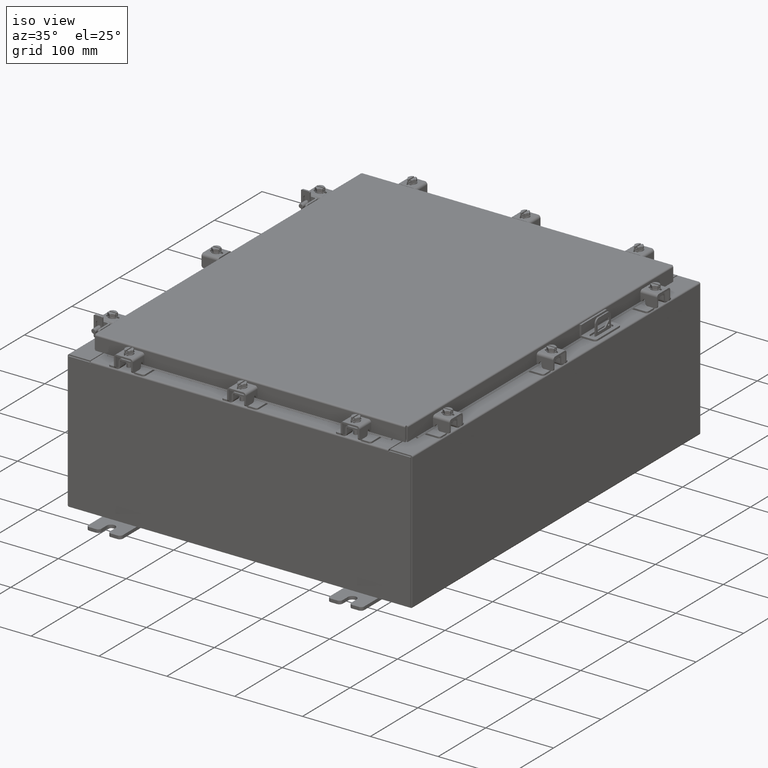
[diagram: clean part render]
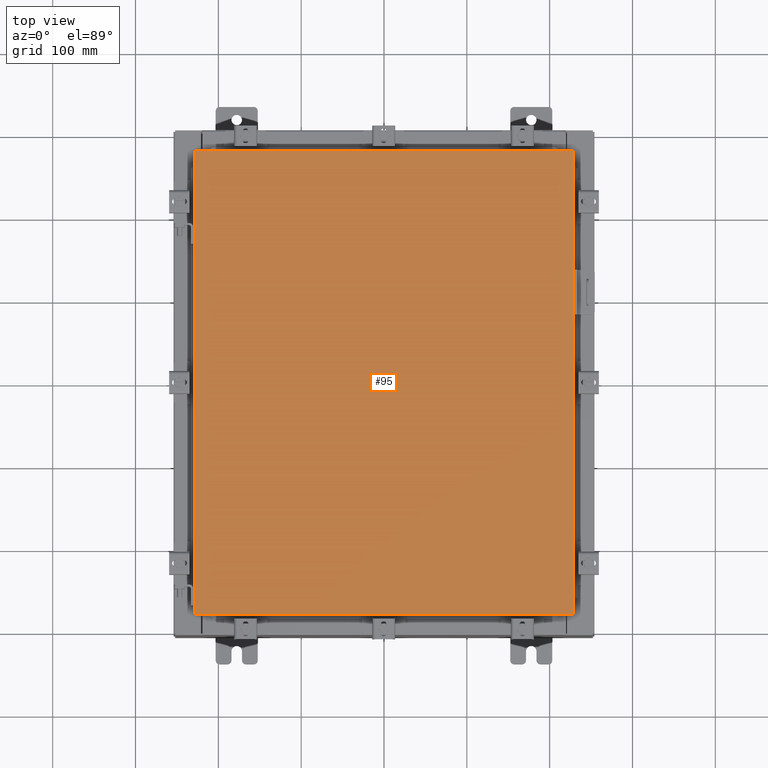
[diagram: tour spotlight — one face highlighted and labeled with its STEP entity id]
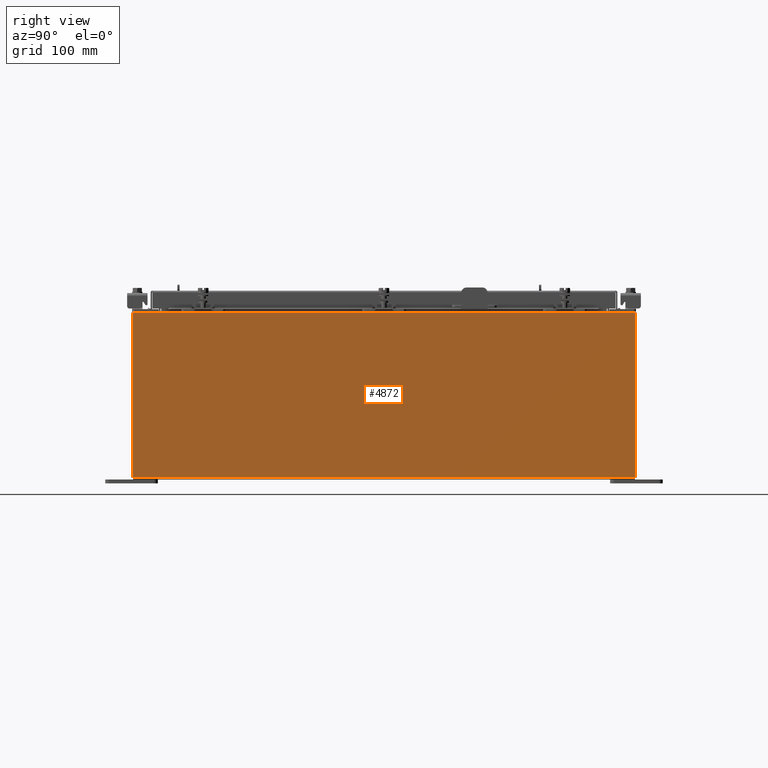
[diagram: tour spotlight — one face highlighted and labeled with its STEP entity id]
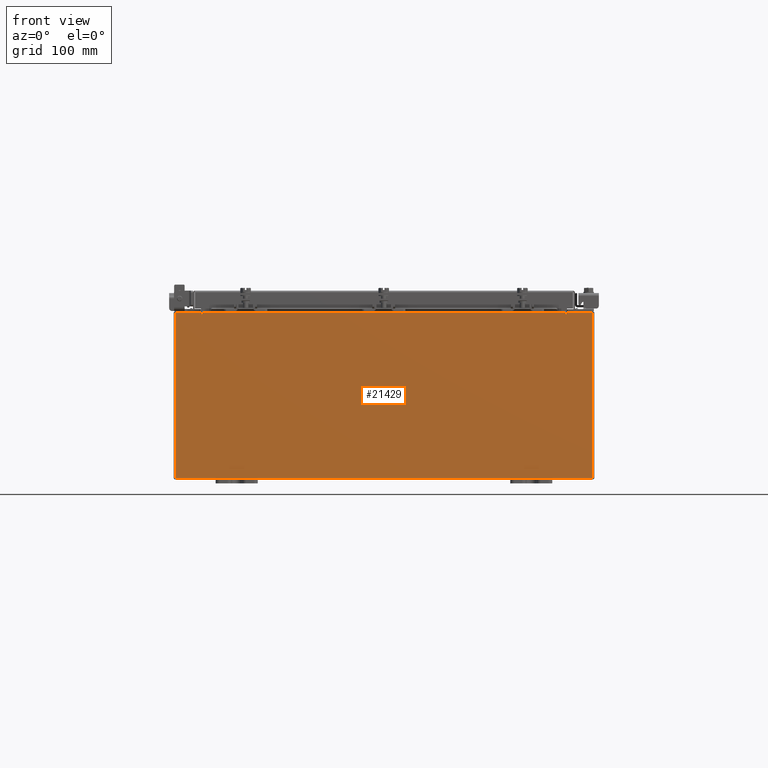
[diagram: tour spotlight — one face highlighted and labeled with its STEP entity id]
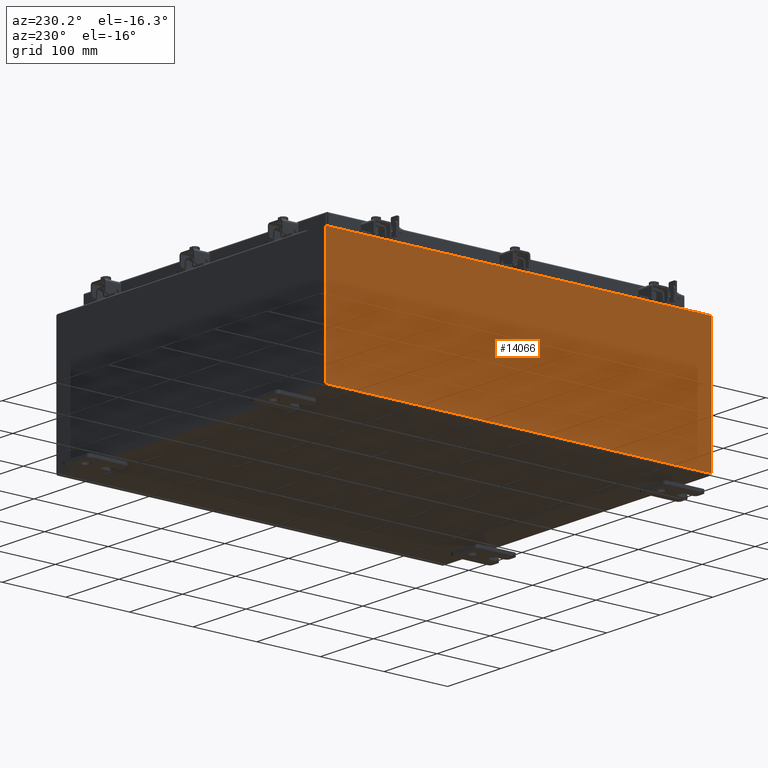
[diagram: tour spotlight — one face highlighted and labeled with its STEP entity id]
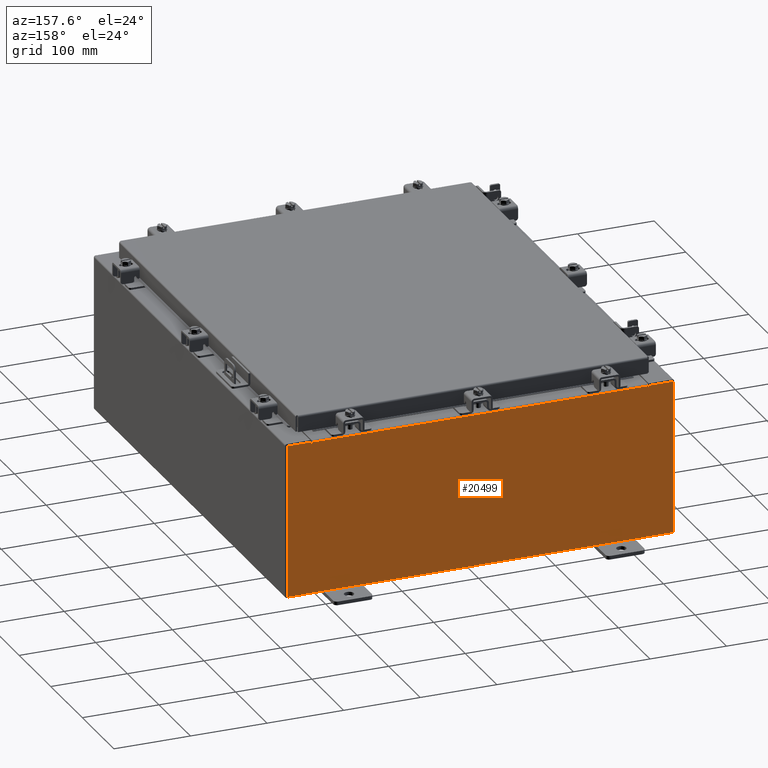
[diagram: tour spotlight — one face highlighted and labeled with its STEP entity id]
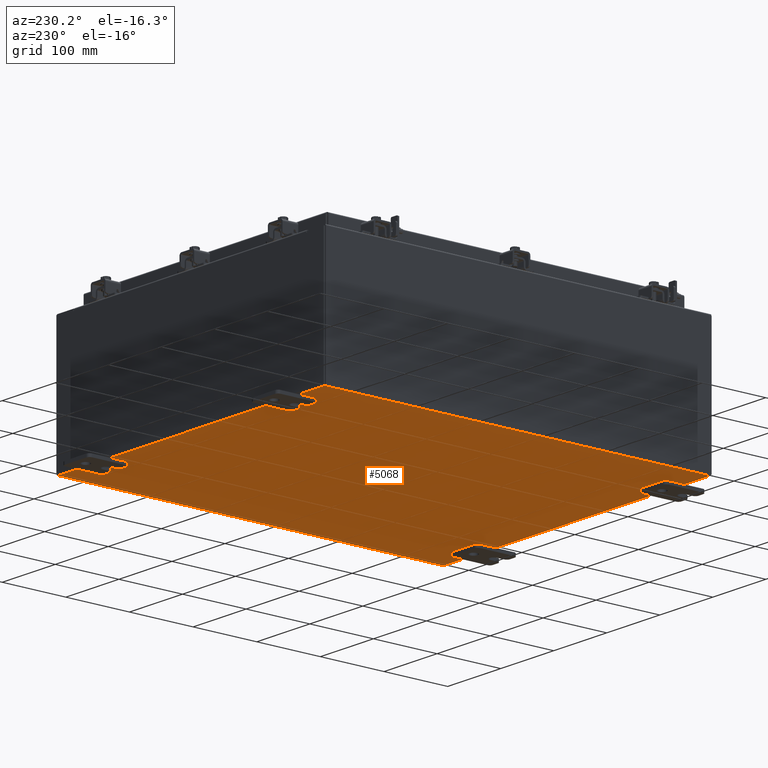
[diagram: tour spotlight — one face highlighted and labeled with its STEP entity id]
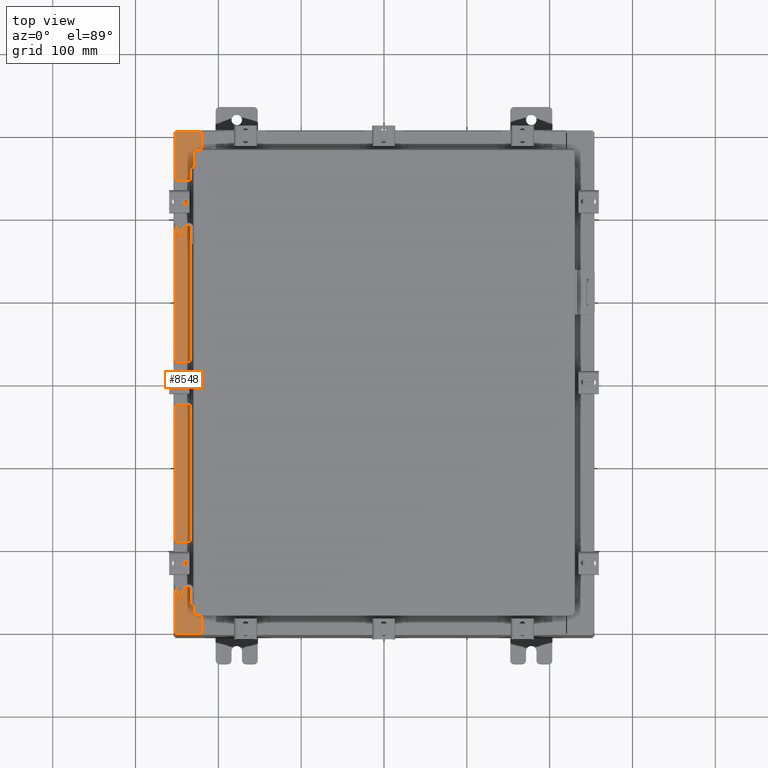
[diagram: tour spotlight — one face highlighted and labeled with its STEP entity id]
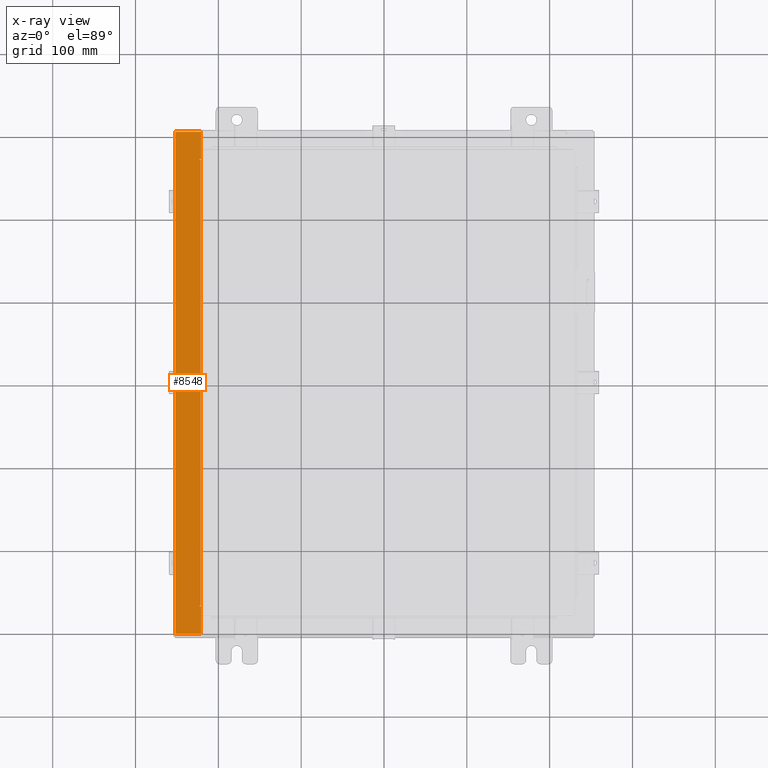
[diagram: x-ray of the same camera — body ghosted, this tour face saturated]
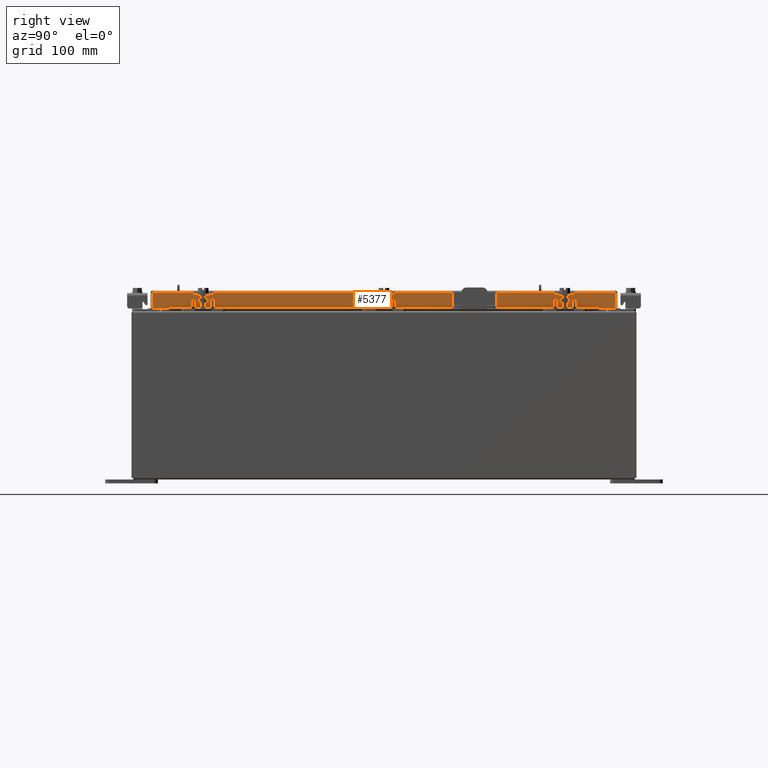
[diagram: tour spotlight — one face highlighted and labeled with its STEP entity id]
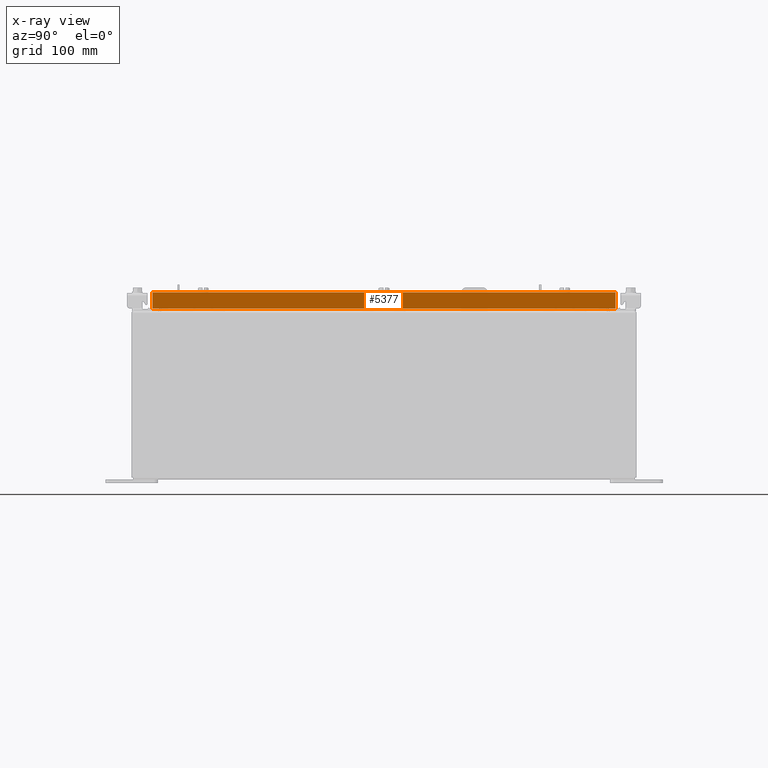
[diagram: x-ray of the same camera — body ghosted, this tour face saturated]
A machine part: a face-by-face anatomy tour. The part has 2018 B-rep faces; the first image is the clean iso view, then the 8 largest visible faces are spotlighted one at a time (largest first), each with its STEP entity span.

Face 1 — top view, entity #95. In plain terms, the highlighted planar face has unit normal (0, 0, -1).
Definition (entity closure, byte-faithful):
#95 = ADVANCED_FACE ( 'NONE', ( #15818 ), #2689, .F. ) ;
#224 = LINE ( 'NONE', #7612, #9480 ) ;
#2431 = CARTESIAN_POINT ( 'NONE',  ( 8.990299999999999500, -11.00630000000000000, -7.512581982576723400E-016 ) ) ;
#2525 = VERTEX_POINT ( 'NONE', #20377 ) ;
#2689 = PLANE ( 'NONE',  #7051 ) ;
#2711 = ORIENTED_EDGE ( 'NONE', *, *, #21019, .T. ) ;
#2712 = CARTESIAN_POINT ( 'NONE',  ( 0.0000000000000000000, 0.0000000000000000000, 0.0000000000000000000 ) ) ;
#5622 = LINE ( 'NONE', #7962, #14387 ) ;
#6442 = DIRECTION ( 'NONE',  ( 0.0000000000000000000, 0.0000000000000000000, -1.000000000000000000 ) ) ;
#6555 = DIRECTION ( 'NONE',  ( -1.000000000000000000, 0.0000000000000000000, -0.0000000000000000000 ) ) ;
#7051 = AXIS2_PLACEMENT_3D ( 'NONE', #2712, #6442, #6555 ) ;
#7612 = CARTESIAN_POINT ( 'NONE',  ( -8.990299999999999500, -11.00630000000000100, -2.048885995248197400E-016 ) ) ;
#7962 = CARTESIAN_POINT ( 'NONE',  ( -8.990299999999999500, 11.00630000000000100, -2.048885995248197400E-016 ) ) ;
#9480 = VECTOR ( 'NONE', #18090, 39.37007874015748100 ) ;
#9732 = DIRECTION ( 'NONE',  ( 0.0000000000000000000, -1.000000000000000000, 0.0000000000000000000 ) ) ;
#10247 = ORIENTED_EDGE ( 'NONE', *, *, #10421, .T. ) ;
#10421 = EDGE_CURVE ( 'NONE', #17636, #2525, #224, .T. ) ;
#10465 = EDGE_CURVE ( 'NONE', #2525, #12976, #22305, .T. ) ;
#12627 = VECTOR ( 'NONE', #19180, 39.37007874015748100 ) ;
#12976 = VERTEX_POINT ( 'NONE', #21591 ) ;
#13050 = VECTOR ( 'NONE', #19877, 39.37007874015748100 ) ;
#14387 = VECTOR ( 'NONE', #9732, 39.37007874015748100 ) ;
#15818 = FACE_OUTER_BOUND ( 'NONE', #16778, .T. ) ;
#16030 = ORIENTED_EDGE ( 'NONE', *, *, #18102, .T. ) ;
#16778 = EDGE_LOOP ( 'NONE', ( #10247, #19525, #2711, #16030 ) ) ;
#17636 = VERTEX_POINT ( 'NONE', #21308 ) ;
#17831 = LINE ( 'NONE', #19262, #12627 ) ;
#18090 = DIRECTION ( 'NONE',  ( 1.000000000000000000, -0.0000000000000000000, -0.0000000000000000000 ) ) ;
#18102 = EDGE_CURVE ( 'NONE', #20822, #17636, #5622, .T. ) ;
#19180 = DIRECTION ( 'NONE',  ( -1.000000000000000000, -0.0000000000000000000, -0.0000000000000000000 ) ) ;
#19262 = CARTESIAN_POINT ( 'NONE',  ( 8.990299999999999500, 11.00630000000000000, -2.048885995248197400E-016 ) ) ;
#19525 = ORIENTED_EDGE ( 'NONE', *, *, #10465, .T. ) ;
#19877 = DIRECTION ( 'NONE',  ( 0.0000000000000000000, 1.000000000000000000, 0.0000000000000000000 ) ) ;
#20377 = CARTESIAN_POINT ( 'NONE',  ( 8.990299999999999500, -11.00630000000000000, -7.512581982576723400E-016 ) ) ;
#20822 = VERTEX_POINT ( 'NONE', #22215 ) ;
#21019 = EDGE_CURVE ( 'NONE', #12976, #20822, #17831, .T. ) ;
#21308 = CARTESIAN_POINT ( 'NONE',  ( -8.990299999999999500, -11.00630000000000100, -2.048885995248197400E-016 ) ) ;
#21591 = CARTESIAN_POINT ( 'NONE',  ( 8.990299999999999500, 11.00630000000000000, -2.048885995248197400E-016 ) ) ;
#22215 = CARTESIAN_POINT ( 'NONE',  ( -8.990299999999999500, 11.00630000000000100, -2.048885995248197400E-016 ) ) ;
#22305 = LINE ( 'NONE', #2431, #13050 ) ;

Face 2 — right view, entity #4872. In plain terms, the highlighted planar face has unit normal (-1, 0, 0).
Definition (entity closure, byte-faithful):
#602 = CARTESIAN_POINT ( 'NONE',  ( 10.00000000000000000, -11.92530000000000000, 0.01299999999999983600 ) ) ;
#802 = VECTOR ( 'NONE', #7851, 39.37007874015748100 ) ;
#809 = FACE_OUTER_BOUND ( 'NONE', #2577, .T. ) ;
#1068 = VECTOR ( 'NONE', #13588, 39.37007874015748100 ) ;
#1079 = DIRECTION ( 'NONE',  ( -1.000000000000000000, 0.0000000000000000000, 3.584876173029202900E-015 ) ) ;
#1603 = AXIS2_PLACEMENT_3D ( 'NONE', #21986, #1079, #13315 ) ;
#2357 = CARTESIAN_POINT ( 'NONE',  ( 10.00000000000000000, 11.92529999999999800, 0.01299999999999984700 ) ) ;
#2577 = EDGE_LOOP ( 'NONE', ( #18405, #6065, #21929, #13222 ) ) ;
#3114 = CARTESIAN_POINT ( 'NONE',  ( 10.00000000000000000, -11.92530000000000000, 0.01299999999999984700 ) ) ;
#4872 = ADVANCED_FACE ( 'NONE', ( #809 ), #9765, .F. ) ;
#5696 = CARTESIAN_POINT ( 'NONE',  ( 10.00000000000000000, 11.92530000000000000, -3.610957538630361200E-014 ) ) ;
#5776 = DIRECTION ( 'NONE',  ( 3.584876173029202900E-015, 0.0000000000000000000, 1.000000000000000000 ) ) ;
#6065 = ORIENTED_EDGE ( 'NONE', *, *, #6845, .T. ) ;
#6845 = EDGE_CURVE ( 'NONE', #19668, #14554, #10545, .T. ) ;
#7285 = CARTESIAN_POINT ( 'NONE',  ( 10.00000000000002800, 11.92529999999999800, 7.837599999999992100 ) ) ;
#7851 = DIRECTION ( 'NONE',  ( -0.0000000000000000000, -1.000000000000000000, -0.0000000000000000000 ) ) ;
#8023 = EDGE_CURVE ( 'NONE', #20419, #19668, #14715, .T. ) ;
#8184 = EDGE_CURVE ( 'NONE', #22493, #14554, #14984, .T. ) ;
#9045 = CARTESIAN_POINT ( 'NONE',  ( 10.00000000000002800, -11.92530000000000000, 7.837599999999998300 ) ) ;
#9765 = PLANE ( 'NONE',  #1603 ) ;
#10402 = EDGE_CURVE ( 'NONE', #22493, #20419, #14139, .T. ) ;
#10545 = LINE ( 'NONE', #13203, #19315 ) ;
#13203 = CARTESIAN_POINT ( 'NONE',  ( 10.00000000000000000, -11.92530000000000000, -3.610957538630361200E-014 ) ) ;
#13222 = ORIENTED_EDGE ( 'NONE', *, *, #10402, .T. ) ;
#13315 = DIRECTION ( 'NONE',  ( 3.584876173029202900E-015, 0.0000000000000000000, 1.000000000000000000 ) ) ;
#13588 = DIRECTION ( 'NONE',  ( -0.0000000000000000000, -1.000000000000000000, -0.0000000000000000000 ) ) ;
#14139 = LINE ( 'NONE', #5696, #18797 ) ;
#14554 = VERTEX_POINT ( 'NONE', #602 ) ;
#14715 = LINE ( 'NONE', #16561, #802 ) ;
#14984 = LINE ( 'NONE', #3114, #1068 ) ;
#16561 = CARTESIAN_POINT ( 'NONE',  ( 10.00000000000002800, 11.92530000000000000, 7.837599999999992100 ) ) ;
#18405 = ORIENTED_EDGE ( 'NONE', *, *, #8023, .T. ) ;
#18797 = VECTOR ( 'NONE', #5776, 39.37007874015748100 ) ;
#19315 = VECTOR ( 'NONE', #21871, 39.37007874015748100 ) ;
#19668 = VERTEX_POINT ( 'NONE', #9045 ) ;
#20419 = VERTEX_POINT ( 'NONE', #7285 ) ;
#21871 = DIRECTION ( 'NONE',  ( -3.584876173029202900E-015, 0.0000000000000000000, -1.000000000000000000 ) ) ;
#21929 = ORIENTED_EDGE ( 'NONE', *, *, #8184, .F. ) ;
#21986 = CARTESIAN_POINT ( 'NONE',  ( 10.00000000000000000, 0.0000000000000000000, -3.610957538630361200E-014 ) ) ;
#22493 = VERTEX_POINT ( 'NONE', #2357 ) ;

Face 3 — front view, entity #21429. In plain terms, the highlighted planar face has unit normal (-0, 1, -0).
Definition (entity closure, byte-faithful):
#443 = VERTEX_POINT ( 'NONE', #11909 ) ;
#489 = LINE ( 'NONE', #2023, #13333 ) ;
#605 = VERTEX_POINT ( 'NONE', #5186 ) ;
#798 = CARTESIAN_POINT ( 'NONE',  ( 8.674550000000001800, 0.0000000000000000000, 3.925299999999999600 ) ) ;
#905 = DIRECTION ( 'NONE',  ( -0.0000000000000000000, 1.000000000000000000, -0.0000000000000000000 ) ) ;
#1187 = ORIENTED_EDGE ( 'NONE', *, *, #6278, .T. ) ;
#1497 = CARTESIAN_POINT ( 'NONE',  ( -8.637199999999996400, 1.024442997624098700E-016, 3.912299999999999700 ) ) ;
#1880 = LINE ( 'NONE', #12726, #10572 ) ;
#1961 = VERTEX_POINT ( 'NONE', #18223 ) ;
#2023 = CARTESIAN_POINT ( 'NONE',  ( 8.674549999999747700, -0.0000000000000000000, -5.647877341832665300E-013 ) ) ;
#2321 = DIRECTION ( 'NONE',  ( 0.0000000000000000000, 0.0000000000000000000, -1.000000000000000000 ) ) ;
#2619 = VECTOR ( 'NONE', #13609, 39.37007874015748100 ) ;
#2926 = CARTESIAN_POINT ( 'NONE',  ( 0.0000000000000000000, 0.0000000000000000000, 0.0000000000000000000 ) ) ;
#2987 = DIRECTION ( 'NONE',  ( 0.0000000000000000000, -0.0000000000000000000, -1.000000000000000000 ) ) ;
#3116 = ORIENTED_EDGE ( 'NONE', *, *, #8336, .T. ) ;
#3235 = LINE ( 'NONE', #7823, #13080 ) ;
#3802 = EDGE_CURVE ( 'NONE', #15924, #8218, #19385, .T. ) ;
#3890 = VERTEX_POINT ( 'NONE', #14805 ) ;
#3902 = FACE_OUTER_BOUND ( 'NONE', #16133, .T. ) ;
#4673 = VECTOR ( 'NONE', #20541, 39.37007874015748100 ) ;
#4737 = ORIENTED_EDGE ( 'NONE', *, *, #14155, .T. ) ;
#5186 = CARTESIAN_POINT ( 'NONE',  ( -8.674549999999996400, 0.0000000000000000000, 3.874949999999999700 ) ) ;
#5386 = LINE ( 'NONE', #11322, #13618 ) ;
#5640 = AXIS2_PLACEMENT_3D ( 'NONE', #18746, #18568, #18433 ) ;
#5867 = EDGE_CURVE ( 'NONE', #15908, #13246, #1880, .T. ) ;
#5978 = EDGE_CURVE ( 'NONE', #8218, #18068, #5386, .T. ) ;
#6001 = ORIENTED_EDGE ( 'NONE', *, *, #17542, .F. ) ;
#6007 = ORIENTED_EDGE ( 'NONE', *, *, #17732, .T. ) ;
#6014 = CARTESIAN_POINT ( 'NONE',  ( 9.925300000000000000, 0.0000000000000000000, -3.925299999999999600 ) ) ;
#6278 = EDGE_CURVE ( 'NONE', #1961, #443, #8675, .T. ) ;
#6734 = CARTESIAN_POINT ( 'NONE',  ( 8.674550000000000000, 0.0000000000000000000, 3.874949999999999700 ) ) ;
#7056 = CARTESIAN_POINT ( 'NONE',  ( -9.925300000000000000, 0.0000000000000000000, 3.925299999999999600 ) ) ;
#7208 = ORIENTED_EDGE ( 'NONE', *, *, #8642, .T. ) ;
#7369 = CIRCLE ( 'NONE', #14781, 0.01867500000000003900 ) ;
#7404 = VERTEX_POINT ( 'NONE', #12788 ) ;
#7502 = ORIENTED_EDGE ( 'NONE', *, *, #21084, .T. ) ;
#7575 = CARTESIAN_POINT ( 'NONE',  ( 9.925300000000000000, 0.0000000000000000000, 3.925299999999999600 ) ) ;
#7587 = EDGE_CURVE ( 'NONE', #605, #7404, #17106, .T. ) ;
#7599 = VECTOR ( 'NONE', #19297, 39.37007874015748100 ) ;
#7823 = CARTESIAN_POINT ( 'NONE',  ( -8.637200000000000000, 1.024442997624098700E-016, 3.912299999999999700 ) ) ;
#7918 = ORIENTED_EDGE ( 'NONE', *, *, #3802, .F. ) ;
#7969 = LINE ( 'NONE', #17656, #16733 ) ;
#8218 = VERTEX_POINT ( 'NONE', #15485 ) ;
#8333 = CARTESIAN_POINT ( 'NONE',  ( -9.925300000000000000, 0.0000000000000000000, -3.925299999999999600 ) ) ;
#8336 = EDGE_CURVE ( 'NONE', #443, #7404, #12251, .T. ) ;
#8544 = CARTESIAN_POINT ( 'NONE',  ( -8.637199999999996400, -0.0000000000000000000, 3.874949999999999700 ) ) ;
#8642 = EDGE_CURVE ( 'NONE', #15908, #18068, #3235, .T. ) ;
#8675 = LINE ( 'NONE', #13244, #22042 ) ;
#10512 = VERTEX_POINT ( 'NONE', #6014 ) ;
#10572 = VECTOR ( 'NONE', #14550, 39.37007874015748100 ) ;
#11322 = CARTESIAN_POINT ( 'NONE',  ( 8.637200000000000000, 0.0000000000000000000, 0.0000000000000000000 ) ) ;
#11336 = CARTESIAN_POINT ( 'NONE',  ( -8.655874999999996400, 0.0000000000000000000, 3.874949999999999700 ) ) ;
#11538 = ORIENTED_EDGE ( 'NONE', *, *, #15119, .F. ) ;
#11909 = CARTESIAN_POINT ( 'NONE',  ( -9.925300000000000000, 0.0000000000000000000, 3.925299999999999600 ) ) ;
#12251 = LINE ( 'NONE', #7056, #7599 ) ;
#12283 = VERTEX_POINT ( 'NONE', #798 ) ;
#12726 = CARTESIAN_POINT ( 'NONE',  ( -8.637199999999996400, -0.0000000000000000000, 0.0000000000000000000 ) ) ;
#12788 = CARTESIAN_POINT ( 'NONE',  ( -8.674549999999996400, 0.0000000000000000000, 3.925299999999999600 ) ) ;
#13080 = VECTOR ( 'NONE', #18288, 39.37007874015748100 ) ;
#13108 = DIRECTION ( 'NONE',  ( 0.0000000000000000000, 0.0000000000000000000, -1.000000000000000000 ) ) ;
#13244 = CARTESIAN_POINT ( 'NONE',  ( -9.925300000000000000, 0.0000000000000000000, 3.925299999999999600 ) ) ;
#13246 = VERTEX_POINT ( 'NONE', #8544 ) ;
#13333 = VECTOR ( 'NONE', #14222, 39.37007874015748100 ) ;
#13470 = DIRECTION ( 'NONE',  ( 0.0000000000000000000, -1.000000000000000000, 0.0000000000000000000 ) ) ;
#13552 = ORIENTED_EDGE ( 'NONE', *, *, #5978, .F. ) ;
#13609 = DIRECTION ( 'NONE',  ( 0.0000000000000000000, 0.0000000000000000000, 1.000000000000000000 ) ) ;
#13618 = VECTOR ( 'NONE', #20063, 39.37007874015748100 ) ;
#13855 = ORIENTED_EDGE ( 'NONE', *, *, #7587, .F. ) ;
#14155 = EDGE_CURVE ( 'NONE', #10512, #1961, #18631, .T. ) ;
#14222 = DIRECTION ( 'NONE',  ( -6.510859170600007400E-014, 0.0000000000000000000, -1.000000000000000000 ) ) ;
#14550 = DIRECTION ( 'NONE',  ( 0.0000000000000000000, 0.0000000000000000000, -1.000000000000000000 ) ) ;
#14669 = VECTOR ( 'NONE', #2321, 39.37007874015748100 ) ;
#14781 = AXIS2_PLACEMENT_3D ( 'NONE', #11336, #905, #13108 ) ;
#14805 = CARTESIAN_POINT ( 'NONE',  ( 9.925300000000000000, 0.0000000000000000000, 3.925299999999999600 ) ) ;
#15119 = EDGE_CURVE ( 'NONE', #13246, #605, #7369, .T. ) ;
#15485 = CARTESIAN_POINT ( 'NONE',  ( 8.637200000000000000, 0.0000000000000000000, 3.874949999999999700 ) ) ;
#15908 = VERTEX_POINT ( 'NONE', #1497 ) ;
#15924 = VERTEX_POINT ( 'NONE', #6734 ) ;
#16133 = EDGE_LOOP ( 'NONE', ( #13855, #11538, #18557, #7208, #13552, #7918, #6001, #7502, #6007, #4737, #1187, #3116 ) ) ;
#16212 = AXIS2_PLACEMENT_3D ( 'NONE', #2926, #13470, #2987 ) ;
#16733 = VECTOR ( 'NONE', #21144, 39.37007874015748100 ) ;
#16908 = PLANE ( 'NONE',  #16212 ) ;
#17106 = LINE ( 'NONE', #18807, #2619 ) ;
#17444 = CARTESIAN_POINT ( 'NONE',  ( 8.637200000000000000, 0.0000000000000000000, 3.912299999999999700 ) ) ;
#17542 = EDGE_CURVE ( 'NONE', #12283, #15924, #489, .T. ) ;
#17656 = CARTESIAN_POINT ( 'NONE',  ( -9.925300000000000000, 0.0000000000000000000, 3.925299999999999600 ) ) ;
#17732 = EDGE_CURVE ( 'NONE', #3890, #10512, #19890, .T. ) ;
#18068 = VERTEX_POINT ( 'NONE', #17444 ) ;
#18223 = CARTESIAN_POINT ( 'NONE',  ( -9.925300000000000000, 0.0000000000000000000, -3.925299999999999600 ) ) ;
#18288 = DIRECTION ( 'NONE',  ( 1.000000000000000000, 0.0000000000000000000, 0.0000000000000000000 ) ) ;
#18433 = DIRECTION ( 'NONE',  ( 0.0000000000000000000, 0.0000000000000000000, -1.000000000000000000 ) ) ;
#18557 = ORIENTED_EDGE ( 'NONE', *, *, #5867, .F. ) ;
#18568 = DIRECTION ( 'NONE',  ( -0.0000000000000000000, 1.000000000000000000, -0.0000000000000000000 ) ) ;
#18631 = LINE ( 'NONE', #8333, #4673 ) ;
#18746 = CARTESIAN_POINT ( 'NONE',  ( 8.655875000000000000, 0.0000000000000000000, 3.874949999999999700 ) ) ;
#18807 = CARTESIAN_POINT ( 'NONE',  ( -8.674549999999996400, -0.0000000000000000000, 0.0000000000000000000 ) ) ;
#19297 = DIRECTION ( 'NONE',  ( 1.000000000000000000, 0.0000000000000000000, 0.0000000000000000000 ) ) ;
#19385 = CIRCLE ( 'NONE', #5640, 0.01867500000000003900 ) ;
#19890 = LINE ( 'NONE', #7575, #14669 ) ;
#20063 = DIRECTION ( 'NONE',  ( 0.0000000000000000000, 0.0000000000000000000, 1.000000000000000000 ) ) ;
#20541 = DIRECTION ( 'NONE',  ( -1.000000000000000000, -0.0000000000000000000, -0.0000000000000000000 ) ) ;
#21084 = EDGE_CURVE ( 'NONE', #12283, #3890, #7969, .T. ) ;
#21144 = DIRECTION ( 'NONE',  ( 1.000000000000000000, 0.0000000000000000000, 0.0000000000000000000 ) ) ;
#21429 = ADVANCED_FACE ( 'NONE', ( #3902 ), #16908, .F. ) ;
#21901 = DIRECTION ( 'NONE',  ( -0.0000000000000000000, -0.0000000000000000000, 1.000000000000000000 ) ) ;
#22042 = VECTOR ( 'NONE', #21901, 39.37007874015748100 ) ;

Face 4 — auxiliary view, entity #14066. In plain terms, the highlighted planar face has unit normal (1, 0, 0).
Definition (entity closure, byte-faithful):
#40 = EDGE_LOOP ( 'NONE', ( #13194, #21162, #21869, #21205 ) ) ;
#134 = LINE ( 'NONE', #4894, #8846 ) ;
#2421 = DIRECTION ( 'NONE',  ( -3.584876173029202900E-015, 0.0000000000000000000, 1.000000000000000000 ) ) ;
#2706 = CARTESIAN_POINT ( 'NONE',  ( -10.00000000000000000, -11.92529999999999800, 0.01299999999999984700 ) ) ;
#3783 = DIRECTION ( 'NONE',  ( 3.584876173029202900E-015, 0.0000000000000000000, -1.000000000000000000 ) ) ;
#4654 = DIRECTION ( 'NONE',  ( 1.000000000000000000, 0.0000000000000000000, 3.584876173029202900E-015 ) ) ;
#4894 = CARTESIAN_POINT ( 'NONE',  ( -10.00000000000000000, 11.92530000000000000, 0.01299999999999984700 ) ) ;
#5261 = VERTEX_POINT ( 'NONE', #14189 ) ;
#5695 = AXIS2_PLACEMENT_3D ( 'NONE', #15127, #4654, #16898 ) ;
#5846 = CARTESIAN_POINT ( 'NONE',  ( -10.00000000000002800, -11.92529999999999500, 7.837599999999999200 ) ) ;
#6128 = LINE ( 'NONE', #12859, #9677 ) ;
#6665 = DIRECTION ( 'NONE',  ( -0.0000000000000000000, 1.000000000000000000, -0.0000000000000000000 ) ) ;
#8094 = PLANE ( 'NONE',  #5695 ) ;
#8470 = LINE ( 'NONE', #19921, #17225 ) ;
#8846 = VECTOR ( 'NONE', #6665, 39.37007874015748100 ) ;
#9677 = VECTOR ( 'NONE', #16311, 39.37007874015748100 ) ;
#9950 = LINE ( 'NONE', #12495, #11024 ) ;
#10916 = FACE_OUTER_BOUND ( 'NONE', #40, .T. ) ;
#11024 = VECTOR ( 'NONE', #3783, 39.37007874015748100 ) ;
#11960 = EDGE_CURVE ( 'NONE', #21857, #5261, #9950, .T. ) ;
#12234 = EDGE_CURVE ( 'NONE', #17000, #21857, #6128, .T. ) ;
#12309 = VERTEX_POINT ( 'NONE', #2706 ) ;
#12495 = CARTESIAN_POINT ( 'NONE',  ( -10.00000000000000000, 11.92530000000000000, -3.610957538630361200E-014 ) ) ;
#12532 = EDGE_CURVE ( 'NONE', #12309, #5261, #134, .T. ) ;
#12859 = CARTESIAN_POINT ( 'NONE',  ( -10.00000000000002800, -11.92530000000000000, 7.837599999999999200 ) ) ;
#13194 = ORIENTED_EDGE ( 'NONE', *, *, #12234, .T. ) ;
#14066 = ADVANCED_FACE ( 'NONE', ( #10916 ), #8094, .F. ) ;
#14189 = CARTESIAN_POINT ( 'NONE',  ( -10.00000000000000000, 11.92530000000000000, 0.01299999999999983600 ) ) ;
#15072 = EDGE_CURVE ( 'NONE', #12309, #17000, #8470, .T. ) ;
#15127 = CARTESIAN_POINT ( 'NONE',  ( -10.00000000000000000, 0.0000000000000000000, -3.610957538630361200E-014 ) ) ;
#16311 = DIRECTION ( 'NONE',  ( 0.0000000000000000000, 1.000000000000000000, 0.0000000000000000000 ) ) ;
#16898 = DIRECTION ( 'NONE',  ( 3.584876173029202900E-015, 0.0000000000000000000, -1.000000000000000000 ) ) ;
#17000 = VERTEX_POINT ( 'NONE', #5846 ) ;
#17225 = VECTOR ( 'NONE', #2421, 39.37007874015748100 ) ;
#17727 = CARTESIAN_POINT ( 'NONE',  ( -10.00000000000002800, 11.92530000000000000, 7.837599999999999200 ) ) ;
#19921 = CARTESIAN_POINT ( 'NONE',  ( -10.00000000000000000, -11.92530000000000000, -3.610957538630361200E-014 ) ) ;
#21162 = ORIENTED_EDGE ( 'NONE', *, *, #11960, .T. ) ;
#21205 = ORIENTED_EDGE ( 'NONE', *, *, #15072, .T. ) ;
#21857 = VERTEX_POINT ( 'NONE', #17727 ) ;
#21869 = ORIENTED_EDGE ( 'NONE', *, *, #12532, .F. ) ;

Face 5 — auxiliary view, entity #20499. In plain terms, the highlighted planar face has unit normal (0, -1, 0).
Definition (entity closure, byte-faithful):
#110 = ORIENTED_EDGE ( 'NONE', *, *, #891, .F. ) ;
#233 = LINE ( 'NONE', #18695, #18253 ) ;
#709 = CARTESIAN_POINT ( 'NONE',  ( 8.637200000000000000, 0.0000000000000000000, 3.874949999999999700 ) ) ;
#891 = EDGE_CURVE ( 'NONE', #22154, #3374, #18143, .T. ) ;
#1049 = VERTEX_POINT ( 'NONE', #22059 ) ;
#1154 = AXIS2_PLACEMENT_3D ( 'NONE', #7022, #19255, #8759 ) ;
#1184 = CARTESIAN_POINT ( 'NONE',  ( -9.925300000000000000, 0.0000000000000000000, 3.925299999999999600 ) ) ;
#1477 = CARTESIAN_POINT ( 'NONE',  ( 8.674550000000000000, 0.0000000000000000000, 3.874949999999999700 ) ) ;
#1853 = VERTEX_POINT ( 'NONE', #17987 ) ;
#2078 = LINE ( 'NONE', #1184, #2632 ) ;
#2410 = CARTESIAN_POINT ( 'NONE',  ( -9.925300000000000000, 0.0000000000000000000, 3.925299999999999600 ) ) ;
#2632 = VECTOR ( 'NONE', #8176, 39.37007874015748100 ) ;
#3013 = EDGE_CURVE ( 'NONE', #7446, #1853, #4646, .T. ) ;
#3108 = ORIENTED_EDGE ( 'NONE', *, *, #4316, .F. ) ;
#3295 = CARTESIAN_POINT ( 'NONE',  ( -9.925300000000000000, 0.0000000000000000000, -3.925299999999999600 ) ) ;
#3374 = VERTEX_POINT ( 'NONE', #709 ) ;
#3512 = LINE ( 'NONE', #4471, #17742 ) ;
#4000 = VECTOR ( 'NONE', #21480, 39.37007874015748100 ) ;
#4088 = ORIENTED_EDGE ( 'NONE', *, *, #17231, .T. ) ;
#4316 = EDGE_CURVE ( 'NONE', #19514, #22154, #3512, .T. ) ;
#4331 = EDGE_CURVE ( 'NONE', #3374, #20489, #22353, .T. ) ;
#4471 = CARTESIAN_POINT ( 'NONE',  ( 8.674549999999747700, -0.0000000000000000000, -5.647877341832665300E-013 ) ) ;
#4646 = LINE ( 'NONE', #18947, #8739 ) ;
#5018 = AXIS2_PLACEMENT_3D ( 'NONE', #15361, #13101, #21559 ) ;
#5120 = EDGE_CURVE ( 'NONE', #1049, #7446, #18006, .T. ) ;
#5210 = CARTESIAN_POINT ( 'NONE',  ( 8.637200000000000000, 0.0000000000000000000, 0.0000000000000000000 ) ) ;
#5370 = LINE ( 'NONE', #10300, #9484 ) ;
#5618 = CARTESIAN_POINT ( 'NONE',  ( -8.637200000000000000, 1.024442997624098700E-016, 3.912299999999999700 ) ) ;
#5898 = VERTEX_POINT ( 'NONE', #2410 ) ;
#5900 = CARTESIAN_POINT ( 'NONE',  ( 0.0000000000000000000, 0.0000000000000000000, 0.0000000000000000000 ) ) ;
#6126 = ORIENTED_EDGE ( 'NONE', *, *, #3013, .F. ) ;
#6207 = DIRECTION ( 'NONE',  ( -6.510859170600007400E-014, 0.0000000000000000000, -1.000000000000000000 ) ) ;
#6359 = ORIENTED_EDGE ( 'NONE', *, *, #5120, .F. ) ;
#6425 = EDGE_CURVE ( 'NONE', #9094, #1049, #5370, .T. ) ;
#6660 = CARTESIAN_POINT ( 'NONE',  ( 9.925300000000000000, 0.0000000000000000000, 3.925299999999999600 ) ) ;
#6910 = FACE_OUTER_BOUND ( 'NONE', #10659, .T. ) ;
#7022 = CARTESIAN_POINT ( 'NONE',  ( -8.655874999999996400, 0.0000000000000000000, 3.874949999999999700 ) ) ;
#7446 = VERTEX_POINT ( 'NONE', #21628 ) ;
#7641 = DIRECTION ( 'NONE',  ( 0.0000000000000000000, -0.0000000000000000000, -1.000000000000000000 ) ) ;
#7887 = EDGE_CURVE ( 'NONE', #9094, #20489, #16580, .T. ) ;
#8176 = DIRECTION ( 'NONE',  ( 1.000000000000000000, 0.0000000000000000000, 0.0000000000000000000 ) ) ;
#8658 = LINE ( 'NONE', #10976, #4000 ) ;
#8739 = VECTOR ( 'NONE', #18982, 39.37007874015748100 ) ;
#8759 = DIRECTION ( 'NONE',  ( 0.0000000000000000000, 0.0000000000000000000, -1.000000000000000000 ) ) ;
#8910 = EDGE_CURVE ( 'NONE', #14346, #12151, #16899, .T. ) ;
#9094 = VERTEX_POINT ( 'NONE', #19605 ) ;
#9484 = VECTOR ( 'NONE', #20762, 39.37007874015748100 ) ;
#9868 = DIRECTION ( 'NONE',  ( 0.0000000000000000000, 0.0000000000000000000, 1.000000000000000000 ) ) ;
#10099 = ORIENTED_EDGE ( 'NONE', *, *, #22564, .T. ) ;
#10300 = CARTESIAN_POINT ( 'NONE',  ( -8.637199999999996400, -0.0000000000000000000, 0.0000000000000000000 ) ) ;
#10659 = EDGE_LOOP ( 'NONE', ( #6126, #6359, #12401, #19238, #12631, #110, #3108, #13360, #14070, #11218, #4088, #10099 ) ) ;
#10751 = EDGE_CURVE ( 'NONE', #18766, #14346, #8658, .T. ) ;
#10976 = CARTESIAN_POINT ( 'NONE',  ( 9.925300000000000000, 0.0000000000000000000, 3.925299999999999600 ) ) ;
#11055 = PLANE ( 'NONE',  #19881 ) ;
#11162 = CARTESIAN_POINT ( 'NONE',  ( -9.925300000000000000, 0.0000000000000000000, 3.925299999999999600 ) ) ;
#11218 = ORIENTED_EDGE ( 'NONE', *, *, #8910, .T. ) ;
#11355 = VECTOR ( 'NONE', #19619, 39.37007874015748100 ) ;
#11675 = VECTOR ( 'NONE', #22444, 39.37007874015748100 ) ;
#12151 = VERTEX_POINT ( 'NONE', #17988 ) ;
#12401 = ORIENTED_EDGE ( 'NONE', *, *, #6425, .F. ) ;
#12631 = ORIENTED_EDGE ( 'NONE', *, *, #4331, .F. ) ;
#13101 = DIRECTION ( 'NONE',  ( -0.0000000000000000000, 1.000000000000000000, -0.0000000000000000000 ) ) ;
#13360 = ORIENTED_EDGE ( 'NONE', *, *, #18642, .T. ) ;
#13717 = VECTOR ( 'NONE', #19996, 39.37007874015748100 ) ;
#14070 = ORIENTED_EDGE ( 'NONE', *, *, #10751, .T. ) ;
#14346 = VERTEX_POINT ( 'NONE', #17648 ) ;
#15361 = CARTESIAN_POINT ( 'NONE',  ( 8.655875000000000000, 0.0000000000000000000, 3.874949999999999700 ) ) ;
#16580 = LINE ( 'NONE', #5618, #11355 ) ;
#16899 = LINE ( 'NONE', #3295, #11675 ) ;
#17231 = EDGE_CURVE ( 'NONE', #12151, #5898, #233, .T. ) ;
#17419 = CARTESIAN_POINT ( 'NONE',  ( 8.674550000000001800, 0.0000000000000000000, 3.925299999999999600 ) ) ;
#17648 = CARTESIAN_POINT ( 'NONE',  ( 9.925300000000000000, 0.0000000000000000000, -3.925299999999999600 ) ) ;
#17742 = VECTOR ( 'NONE', #6207, 39.37007874015748100 ) ;
#17987 = CARTESIAN_POINT ( 'NONE',  ( -8.674549999999996400, 0.0000000000000000000, 3.925299999999999600 ) ) ;
#17988 = CARTESIAN_POINT ( 'NONE',  ( -9.925300000000000000, 0.0000000000000000000, -3.925299999999999600 ) ) ;
#18006 = CIRCLE ( 'NONE', #1154, 0.01867500000000003900 ) ;
#18132 = DIRECTION ( 'NONE',  ( 0.0000000000000000000, -1.000000000000000000, 0.0000000000000000000 ) ) ;
#18143 = CIRCLE ( 'NONE', #5018, 0.01867500000000003900 ) ;
#18253 = VECTOR ( 'NONE', #20433, 39.37007874015748100 ) ;
#18642 = EDGE_CURVE ( 'NONE', #19514, #18766, #2078, .T. ) ;
#18695 = CARTESIAN_POINT ( 'NONE',  ( -9.925300000000000000, 0.0000000000000000000, 3.925299999999999600 ) ) ;
#18766 = VERTEX_POINT ( 'NONE', #6660 ) ;
#18920 = LINE ( 'NONE', #11162, #13717 ) ;
#18947 = CARTESIAN_POINT ( 'NONE',  ( -8.674549999999996400, -0.0000000000000000000, 0.0000000000000000000 ) ) ;
#18982 = DIRECTION ( 'NONE',  ( 0.0000000000000000000, 0.0000000000000000000, 1.000000000000000000 ) ) ;
#19238 = ORIENTED_EDGE ( 'NONE', *, *, #7887, .T. ) ;
#19255 = DIRECTION ( 'NONE',  ( -0.0000000000000000000, 1.000000000000000000, -0.0000000000000000000 ) ) ;
#19514 = VERTEX_POINT ( 'NONE', #17419 ) ;
#19605 = CARTESIAN_POINT ( 'NONE',  ( -8.637199999999996400, 1.024442997624098700E-016, 3.912299999999999700 ) ) ;
#19619 = DIRECTION ( 'NONE',  ( 1.000000000000000000, 0.0000000000000000000, 0.0000000000000000000 ) ) ;
#19881 = AXIS2_PLACEMENT_3D ( 'NONE', #5900, #18132, #7641 ) ;
#19996 = DIRECTION ( 'NONE',  ( 1.000000000000000000, 0.0000000000000000000, 0.0000000000000000000 ) ) ;
#20433 = DIRECTION ( 'NONE',  ( -0.0000000000000000000, -0.0000000000000000000, 1.000000000000000000 ) ) ;
#20489 = VERTEX_POINT ( 'NONE', #21475 ) ;
#20499 = ADVANCED_FACE ( 'NONE', ( #6910 ), #11055, .F. ) ;
#20762 = DIRECTION ( 'NONE',  ( 0.0000000000000000000, 0.0000000000000000000, -1.000000000000000000 ) ) ;
#21475 = CARTESIAN_POINT ( 'NONE',  ( 8.637200000000000000, 0.0000000000000000000, 3.912299999999999700 ) ) ;
#21480 = DIRECTION ( 'NONE',  ( 0.0000000000000000000, 0.0000000000000000000, -1.000000000000000000 ) ) ;
#21535 = VECTOR ( 'NONE', #9868, 39.37007874015748100 ) ;
#21559 = DIRECTION ( 'NONE',  ( 0.0000000000000000000, 0.0000000000000000000, -1.000000000000000000 ) ) ;
#21628 = CARTESIAN_POINT ( 'NONE',  ( -8.674549999999996400, 0.0000000000000000000, 3.874949999999999700 ) ) ;
#22059 = CARTESIAN_POINT ( 'NONE',  ( -8.637199999999996400, -0.0000000000000000000, 3.874949999999999700 ) ) ;
#22154 = VERTEX_POINT ( 'NONE', #1477 ) ;
#22353 = LINE ( 'NONE', #5210, #21535 ) ;
#22444 = DIRECTION ( 'NONE',  ( -1.000000000000000000, -0.0000000000000000000, -0.0000000000000000000 ) ) ;
#22564 = EDGE_CURVE ( 'NONE', #5898, #1853, #18920, .T. ) ;

Face 6 — auxiliary view, entity #5068. In plain terms, the highlighted planar face has unit normal (0, 0, -1).
Definition (entity closure, byte-faithful):
#1020 = LINE ( 'NONE', #19508, #19069 ) ;
#3128 = DIRECTION ( 'NONE',  ( -0.0000000000000000000, 1.000000000000000000, -0.0000000000000000000 ) ) ;
#3197 = ORIENTED_EDGE ( 'NONE', *, *, #10634, .T. ) ;
#4544 = CARTESIAN_POINT ( 'NONE',  ( -9.912300000000000100, 11.92530000000000000, -0.07470000000000000300 ) ) ;
#5068 = ADVANCED_FACE ( 'NONE', ( #10337 ), #20752, .T. ) ;
#5394 = VECTOR ( 'NONE', #3128, 39.37007874015748100 ) ;
#5610 = CARTESIAN_POINT ( 'NONE',  ( -9.912300000000000100, -11.92529999999999800, -0.07469999999999994700 ) ) ;
#6330 = VECTOR ( 'NONE', #12932, 39.37007874015748100 ) ;
#7055 = LINE ( 'NONE', #13661, #5394 ) ;
#7160 = VERTEX_POINT ( 'NONE', #8740 ) ;
#7198 = LINE ( 'NONE', #20950, #15947 ) ;
#7288 = DIRECTION ( 'NONE',  ( -0.0000000000000000000, -1.000000000000000000, -0.0000000000000000000 ) ) ;
#7991 = ORIENTED_EDGE ( 'NONE', *, *, #20316, .F. ) ;
#8740 = CARTESIAN_POINT ( 'NONE',  ( 9.912300000000000100, 11.92529999999999800, -0.07469999999999994700 ) ) ;
#8867 = VERTEX_POINT ( 'NONE', #17145 ) ;
#9369 = VERTEX_POINT ( 'NONE', #4544 ) ;
#9569 = EDGE_LOOP ( 'NONE', ( #7991, #12906, #10411, #3197 ) ) ;
#10337 = FACE_OUTER_BOUND ( 'NONE', #9569, .T. ) ;
#10411 = ORIENTED_EDGE ( 'NONE', *, *, #21167, .F. ) ;
#10481 = DIRECTION ( 'NONE',  ( 1.000000000000000000, 0.0000000000000000000, 0.0000000000000000000 ) ) ;
#10634 = EDGE_CURVE ( 'NONE', #7160, #8867, #1020, .T. ) ;
#12040 = DIRECTION ( 'NONE',  ( -1.000000000000000000, 0.0000000000000000000, -0.0000000000000000000 ) ) ;
#12906 = ORIENTED_EDGE ( 'NONE', *, *, #16658, .T. ) ;
#12932 = DIRECTION ( 'NONE',  ( -1.000000000000000000, -0.0000000000000000000, -0.0000000000000000000 ) ) ;
#13661 = CARTESIAN_POINT ( 'NONE',  ( -9.912300000000000100, -11.92530000000000000, -0.07469999999999994700 ) ) ;
#15639 = LINE ( 'NONE', #17725, #6330 ) ;
#15947 = VECTOR ( 'NONE', #10481, 39.37007874015748100 ) ;
#16658 = EDGE_CURVE ( 'NONE', #19718, #9369, #7055, .T. ) ;
#17145 = CARTESIAN_POINT ( 'NONE',  ( 9.912300000000000100, -11.92530000000000000, -0.07470000000000000300 ) ) ;
#17256 = CARTESIAN_POINT ( 'NONE',  ( 0.0000000000000000000, 0.0000000000000000000, -0.07470000000000000300 ) ) ;
#17725 = CARTESIAN_POINT ( 'NONE',  ( -10.00000000000000000, 11.92530000000000000, -0.07470000000000000300 ) ) ;
#19069 = VECTOR ( 'NONE', #7288, 39.37007874015748100 ) ;
#19508 = CARTESIAN_POINT ( 'NONE',  ( 9.912300000000000100, 11.92530000000000000, -0.07469999999999994700 ) ) ;
#19718 = VERTEX_POINT ( 'NONE', #5610 ) ;
#20316 = EDGE_CURVE ( 'NONE', #19718, #8867, #7198, .T. ) ;
#20324 = AXIS2_PLACEMENT_3D ( 'NONE', #17256, #22513, #12040 ) ;
#20752 = PLANE ( 'NONE',  #20324 ) ;
#20950 = CARTESIAN_POINT ( 'NONE',  ( -10.00000000000000000, -11.92530000000000000, -0.07470000000000000300 ) ) ;
#21167 = EDGE_CURVE ( 'NONE', #7160, #9369, #15639, .T. ) ;
#22513 = DIRECTION ( 'NONE',  ( 0.0000000000000000000, 0.0000000000000000000, -1.000000000000000000 ) ) ;

Face 7 — top view, entity #8548. An x-ray twin of the same camera follows (body ghosted, this face saturated) — the face is partly hidden behind the body. In plain terms, the highlighted planar face has unit normal (0, 0, -1).
Definition (entity closure, byte-faithful):
#139 = EDGE_CURVE ( 'NONE', #12919, #7479, #6521, .T. ) ;
#551 = CARTESIAN_POINT ( 'NONE',  ( -9.912300000000028500, -11.92529999999999600, 7.925300000000000000 ) ) ;
#1843 = VECTOR ( 'NONE', #4438, 39.37007874015748100 ) ;
#2358 = EDGE_CURVE ( 'NONE', #9887, #4400, #13974, .T. ) ;
#2650 = DIRECTION ( 'NONE',  ( 1.000000000000000000, 0.0000000000000000000, 0.0000000000000000000 ) ) ;
#2830 = VERTEX_POINT ( 'NONE', #11129 ) ;
#3482 = EDGE_CURVE ( 'NONE', #12171, #18201, #14470, .T. ) ;
#3582 = DIRECTION ( 'NONE',  ( 0.0000000000000000000, 1.000000000000000000, 0.0000000000000000000 ) ) ;
#3934 = VERTEX_POINT ( 'NONE', #11734 ) ;
#3994 = AXIS2_PLACEMENT_3D ( 'NONE', #5379, #17633, #7140 ) ;
#4037 = CARTESIAN_POINT ( 'NONE',  ( -8.750050000000030100, 10.63109999999999800, 7.925300000000008900 ) ) ;
#4146 = DIRECTION ( 'NONE',  ( 7.132762385546378400E-015, 0.0000000000000000000, -1.000000000000000000 ) ) ;
#4319 = FACE_OUTER_BOUND ( 'NONE', #21117, .T. ) ;
#4400 = VERTEX_POINT ( 'NONE', #10777 ) ;
#4438 = DIRECTION ( 'NONE',  ( 0.0000000000000000000, 1.000000000000000000, 0.0000000000000000000 ) ) ;
#4446 = ORIENTED_EDGE ( 'NONE', *, *, #8152, .T. ) ;
#5077 = LINE ( 'NONE', #13623, #18486 ) ;
#5168 = VECTOR ( 'NONE', #14892, 39.37007874015748100 ) ;
#5251 = EDGE_CURVE ( 'NONE', #11691, #2830, #16367, .T. ) ;
#5379 = CARTESIAN_POINT ( 'NONE',  ( -8.750050000000030100, -10.61242499999999300, 7.925300000000008900 ) ) ;
#5452 = AXIS2_PLACEMENT_3D ( 'NONE', #18054, #4146, #16373 ) ;
#5687 = CARTESIAN_POINT ( 'NONE',  ( -8.712700000000030100, -10.59374999999999300, 7.925300000000008900 ) ) ;
#5887 = AXIS2_PLACEMENT_3D ( 'NONE', #6142, #14473, #2650 ) ;
#6142 = CARTESIAN_POINT ( 'NONE',  ( -8.750050000000030100, 10.61242500000000000, 7.925300000000008900 ) ) ;
#6238 = VECTOR ( 'NONE', #22168, 39.37007874015748100 ) ;
#6453 = LINE ( 'NONE', #9635, #1843 ) ;
#6521 = CIRCLE ( 'NONE', #5887, 0.01867499999999949400 ) ;
#7140 = DIRECTION ( 'NONE',  ( 1.000000000000000000, 0.0000000000000000000, 0.0000000000000000000 ) ) ;
#7321 = CIRCLE ( 'NONE', #3994, 0.01867499999999949400 ) ;
#7479 = VERTEX_POINT ( 'NONE', #14691 ) ;
#7616 = DIRECTION ( 'NONE',  ( -0.0000000000000000000, 1.000000000000000000, -0.0000000000000000000 ) ) ;
#7637 = ORIENTED_EDGE ( 'NONE', *, *, #139, .F. ) ;
#8142 = DIRECTION ( 'NONE',  ( 1.000000000000000000, 1.783190596386595000E-015, 7.132762385546378400E-015 ) ) ;
#8152 = EDGE_CURVE ( 'NONE', #22471, #13722, #11417, .T. ) ;
#8340 = VERTEX_POINT ( 'NONE', #8813 ) ;
#8548 = ADVANCED_FACE ( 'NONE', ( #4319 ), #14620, .F. ) ;
#8553 = ORIENTED_EDGE ( 'NONE', *, *, #3482, .F. ) ;
#8734 = LINE ( 'NONE', #20885, #17496 ) ;
#8796 = CARTESIAN_POINT ( 'NONE',  ( -9.912300000000028500, 11.92530000000000000, 7.925300000000000000 ) ) ;
#8813 = CARTESIAN_POINT ( 'NONE',  ( -8.712700000000030100, 10.59375000000000000, 7.925300000000008900 ) ) ;
#9635 = CARTESIAN_POINT ( 'NONE',  ( -8.699700000000028400, 0.0000000000000000000, 7.925300000000008900 ) ) ;
#9887 = VERTEX_POINT ( 'NONE', #551 ) ;
#9976 = CARTESIAN_POINT ( 'NONE',  ( -8.712700000000030100, -10.59374999999999300, 7.925300000000008900 ) ) ;
#10511 = ORIENTED_EDGE ( 'NONE', *, *, #18729, .F. ) ;
#10777 = CARTESIAN_POINT ( 'NONE',  ( -8.699700000000028400, -11.92529999999999500, 7.925300000000008900 ) ) ;
#10924 = EDGE_CURVE ( 'NONE', #4400, #18201, #6453, .T. ) ;
#11036 = VECTOR ( 'NONE', #3582, 39.37007874015748100 ) ;
#11129 = CARTESIAN_POINT ( 'NONE',  ( -8.750050000000030100, -10.59374999999999300, 7.925300000000008900 ) ) ;
#11417 = LINE ( 'NONE', #15245, #6238 ) ;
#11691 = VERTEX_POINT ( 'NONE', #9976 ) ;
#11734 = CARTESIAN_POINT ( 'NONE',  ( -8.699700000000028400, 10.63110000000000200, 7.925300000000008900 ) ) ;
#12171 = VERTEX_POINT ( 'NONE', #21411 ) ;
#12738 = CARTESIAN_POINT ( 'NONE',  ( -8.699700000000028400, 11.92530000000000000, 7.925300000000008900 ) ) ;
#12897 = CARTESIAN_POINT ( 'NONE',  ( -9.912300000000028500, 11.92530000000000000, 7.925300000000000000 ) ) ;
#12919 = VERTEX_POINT ( 'NONE', #4037 ) ;
#13252 = ORIENTED_EDGE ( 'NONE', *, *, #2358, .T. ) ;
#13623 = CARTESIAN_POINT ( 'NONE',  ( -8.712700000000030100, 10.59375000000000200, 7.925300000000008900 ) ) ;
#13722 = VERTEX_POINT ( 'NONE', #8796 ) ;
#13940 = VECTOR ( 'NONE', #16929, 39.37007874015748100 ) ;
#13941 = DIRECTION ( 'NONE',  ( -1.000000000000000000, -4.340572780399910900E-014, 0.0000000000000000000 ) ) ;
#13974 = LINE ( 'NONE', #15867, #14508 ) ;
#14470 = LINE ( 'NONE', #14668, #5168 ) ;
#14473 = DIRECTION ( 'NONE',  ( -7.132762385546378400E-015, -0.0000000000000000000, 1.000000000000000000 ) ) ;
#14476 = LINE ( 'NONE', #15170, #13940 ) ;
#14489 = DIRECTION ( 'NONE',  ( -1.000000000000000000, 0.0000000000000000000, 0.0000000000000000000 ) ) ;
#14508 = VECTOR ( 'NONE', #8142, 39.37007874015748100 ) ;
#14620 = PLANE ( 'NONE',  #5452 ) ;
#14668 = CARTESIAN_POINT ( 'NONE',  ( -8.750050000000030100, -10.63109999999999300, 7.925300000000008900 ) ) ;
#14691 = CARTESIAN_POINT ( 'NONE',  ( -8.750050000000030100, 10.59375000000000000, 7.925300000000008900 ) ) ;
#14892 = DIRECTION ( 'NONE',  ( 1.000000000000000000, 0.0000000000000000000, 0.0000000000000000000 ) ) ;
#15069 = CARTESIAN_POINT ( 'NONE',  ( -8.699700000000028400, -10.63109999999999300, 7.925300000000008900 ) ) ;
#15170 = CARTESIAN_POINT ( 'NONE',  ( -8.750050000000030100, 10.59375000000000000, 7.925300000000008900 ) ) ;
#15231 = EDGE_CURVE ( 'NONE', #7479, #8340, #14476, .T. ) ;
#15245 = CARTESIAN_POINT ( 'NONE',  ( -5.679009539018279500E-014, 11.92530000000000000, 7.925300000000071100 ) ) ;
#15364 = EDGE_CURVE ( 'NONE', #3934, #12919, #8734, .T. ) ;
#15867 = CARTESIAN_POINT ( 'NONE',  ( -3.552501257109376000E-014, -11.92529999999998000, 7.925300000000071100 ) ) ;
#16359 = EDGE_CURVE ( 'NONE', #9887, #13722, #21266, .T. ) ;
#16367 = LINE ( 'NONE', #5687, #20456 ) ;
#16373 = DIRECTION ( 'NONE',  ( -1.000000000000000000, 0.0000000000000000000, -7.132762385546378400E-015 ) ) ;
#16837 = LINE ( 'NONE', #19270, #11036 ) ;
#16852 = EDGE_CURVE ( 'NONE', #2830, #12171, #7321, .T. ) ;
#16929 = DIRECTION ( 'NONE',  ( 1.000000000000000000, 0.0000000000000000000, 0.0000000000000000000 ) ) ;
#17496 = VECTOR ( 'NONE', #13941, 39.37007874015748100 ) ;
#17633 = DIRECTION ( 'NONE',  ( -7.132762385546378400E-015, -0.0000000000000000000, 1.000000000000000000 ) ) ;
#17880 = ORIENTED_EDGE ( 'NONE', *, *, #18889, .T. ) ;
#18054 = CARTESIAN_POINT ( 'NONE',  ( -5.679009539018279500E-014, 0.0000000000000000000, 7.925300000000071100 ) ) ;
#18159 = ORIENTED_EDGE ( 'NONE', *, *, #5251, .F. ) ;
#18201 = VERTEX_POINT ( 'NONE', #15069 ) ;
#18332 = ORIENTED_EDGE ( 'NONE', *, *, #15231, .F. ) ;
#18486 = VECTOR ( 'NONE', #20641, 39.37007874015748100 ) ;
#18729 = EDGE_CURVE ( 'NONE', #8340, #11691, #5077, .T. ) ;
#18889 = EDGE_CURVE ( 'NONE', #3934, #22471, #16837, .T. ) ;
#19152 = ORIENTED_EDGE ( 'NONE', *, *, #15364, .F. ) ;
#19270 = CARTESIAN_POINT ( 'NONE',  ( -8.699700000000028400, 0.0000000000000000000, 7.925300000000008900 ) ) ;
#20138 = ORIENTED_EDGE ( 'NONE', *, *, #10924, .T. ) ;
#20196 = VECTOR ( 'NONE', #7616, 39.37007874015748100 ) ;
#20456 = VECTOR ( 'NONE', #14489, 39.37007874015748100 ) ;
#20641 = DIRECTION ( 'NONE',  ( -0.0000000000000000000, -1.000000000000000000, -0.0000000000000000000 ) ) ;
#20875 = ORIENTED_EDGE ( 'NONE', *, *, #16359, .F. ) ;
#20885 = CARTESIAN_POINT ( 'NONE',  ( -8.699700000000028400, 10.63110000000000200, 7.925300000000008900 ) ) ;
#21117 = EDGE_LOOP ( 'NONE', ( #19152, #17880, #4446, #20875, #13252, #20138, #8553, #21289, #18159, #10511, #18332, #7637 ) ) ;
#21266 = LINE ( 'NONE', #12897, #20196 ) ;
#21289 = ORIENTED_EDGE ( 'NONE', *, *, #16852, .F. ) ;
#21411 = CARTESIAN_POINT ( 'NONE',  ( -8.750050000000030100, -10.63109999999999300, 7.925300000000008900 ) ) ;
#22168 = DIRECTION ( 'NONE',  ( -1.000000000000000000, 0.0000000000000000000, -7.132762385546378400E-015 ) ) ;
#22471 = VERTEX_POINT ( 'NONE', #12738 ) ;

Face 8 — right view, entity #5377. An x-ray twin of the same camera follows (body ghosted, this face saturated) — the face is partly hidden behind the body. In plain terms, the highlighted planar face has unit normal (1, 0, 0).
Definition (entity closure, byte-faithful):
#303 = ORIENTED_EDGE ( 'NONE', *, *, #12982, .F. ) ;
#1746 = DIRECTION ( 'NONE',  ( 1.388273706127834800E-031, -1.000000000000000000, -4.924910751152449900E-017 ) ) ;
#1753 = EDGE_LOOP ( 'NONE', ( #17619, #303, #21146, #18686, #21994, #4895 ) ) ;
#1757 = VECTOR ( 'NONE', #4211, 39.37007874015748100 ) ;
#3355 = CARTESIAN_POINT ( 'NONE',  ( 9.077999999999997600, 10.25515786437627200, -0.8500000000000005300 ) ) ;
#3587 = VERTEX_POINT ( 'NONE', #14442 ) ;
#4211 = DIRECTION ( 'NONE',  ( 0.0000000000000000000, -1.000000000000000000, 0.0000000000000000000 ) ) ;
#4570 = PLANE ( 'NONE',  #19903 ) ;
#4866 = CARTESIAN_POINT ( 'NONE',  ( 9.078000000000001200, 11.00515786437627400, -0.8499999999999996400 ) ) ;
#4895 = ORIENTED_EDGE ( 'NONE', *, *, #18301, .T. ) ;
#5080 = EDGE_CURVE ( 'NONE', #3587, #14574, #5688, .T. ) ;
#5110 = DIRECTION ( 'NONE',  ( 0.0000000000000000000, -1.000000000000000000, 0.0000000000000000000 ) ) ;
#5377 = ADVANCED_FACE ( 'NONE', ( #5969 ), #4570, .T. ) ;
#5688 = LINE ( 'NONE', #3355, #9790 ) ;
#5969 = FACE_OUTER_BOUND ( 'NONE', #1753, .T. ) ;
#6309 = CARTESIAN_POINT ( 'NONE',  ( 9.077999999999999400, 0.0000000000000000000, 2.585061485449906600E-014 ) ) ;
#6411 = CARTESIAN_POINT ( 'NONE',  ( 9.078000000000001200, -11.09399999999999900, -0.8499999999999996400 ) ) ;
#7009 = CARTESIAN_POINT ( 'NONE',  ( 9.077999999999999400, 11.00515786437626900, 1.026992214834840500E-013 ) ) ;
#7544 = VECTOR ( 'NONE', #1746, 39.37007874015748100 ) ;
#8072 = DIRECTION ( 'NONE',  ( 1.000000000000000000, 0.0000000000000000000, 2.818880942772360100E-015 ) ) ;
#8087 = LINE ( 'NONE', #12184, #7544 ) ;
#8664 = DIRECTION ( 'NONE',  ( -2.818880942772360100E-015, -6.982962677686267500E-015, 1.000000000000000000 ) ) ;
#9790 = VECTOR ( 'NONE', #5110, 39.37007874015748100 ) ;
#10145 = EDGE_CURVE ( 'NONE', #13180, #3587, #19869, .T. ) ;
#10693 = VERTEX_POINT ( 'NONE', #14315 ) ;
#10971 = LINE ( 'NONE', #14666, #1757 ) ;
#11085 = CARTESIAN_POINT ( 'NONE',  ( 9.077999999999999400, 11.00515786437627100, -0.08770000000000061100 ) ) ;
#11103 = CARTESIAN_POINT ( 'NONE',  ( 9.077999999999997600, -10.25515786437626400, -0.8500000000000005300 ) ) ;
#11462 = CARTESIAN_POINT ( 'NONE',  ( 9.078000000000001200, -11.00515786437626400, -0.8499999999999996400 ) ) ;
#12184 = CARTESIAN_POINT ( 'NONE',  ( 9.077999999999999400, 4.319146728762002000E-018, -0.08770000000000061100 ) ) ;
#12393 = VECTOR ( 'NONE', #8664, 39.37007874015748100 ) ;
#12982 = EDGE_CURVE ( 'NONE', #14574, #20071, #10971, .T. ) ;
#13180 = VERTEX_POINT ( 'NONE', #4866 ) ;
#14315 = CARTESIAN_POINT ( 'NONE',  ( 9.077999999999999400, -11.00515786437626900, -0.08770000000000115200 ) ) ;
#14442 = CARTESIAN_POINT ( 'NONE',  ( 9.077999999999997600, 10.25515786437627200, -0.8500000000000005300 ) ) ;
#14574 = VERTEX_POINT ( 'NONE', #11103 ) ;
#14666 = CARTESIAN_POINT ( 'NONE',  ( 9.078000000000001200, -11.09399999999999900, -0.8499999999999996400 ) ) ;
#16801 = EDGE_CURVE ( 'NONE', #13180, #17026, #17171, .T. ) ;
#16896 = DIRECTION ( 'NONE',  ( 0.0000000000000000000, -1.000000000000000000, 0.0000000000000000000 ) ) ;
#17026 = VERTEX_POINT ( 'NONE', #11085 ) ;
#17171 = LINE ( 'NONE', #7009, #21250 ) ;
#17619 = ORIENTED_EDGE ( 'NONE', *, *, #20296, .F. ) ;
#18301 = EDGE_CURVE ( 'NONE', #17026, #10693, #8087, .T. ) ;
#18686 = ORIENTED_EDGE ( 'NONE', *, *, #10145, .F. ) ;
#19869 = LINE ( 'NONE', #6411, #20401 ) ;
#19903 = AXIS2_PLACEMENT_3D ( 'NONE', #6309, #8072, #20299 ) ;
#20071 = VERTEX_POINT ( 'NONE', #11462 ) ;
#20296 = EDGE_CURVE ( 'NONE', #20071, #10693, #22214, .T. ) ;
#20299 = DIRECTION ( 'NONE',  ( 2.818880942772360100E-015, 0.0000000000000000000, -1.000000000000000000 ) ) ;
#20401 = VECTOR ( 'NONE', #16896, 39.37007874015748100 ) ;
#20882 = CARTESIAN_POINT ( 'NONE',  ( 9.077999999999999400, -11.00515786437626900, -0.07469999999999978000 ) ) ;
#20906 = DIRECTION ( 'NONE',  ( -2.818880942772360100E-015, -6.982962677686267500E-015, 1.000000000000000000 ) ) ;
#21146 = ORIENTED_EDGE ( 'NONE', *, *, #5080, .F. ) ;
#21250 = VECTOR ( 'NONE', #20906, 39.37007874015748100 ) ;
#21994 = ORIENTED_EDGE ( 'NONE', *, *, #16801, .T. ) ;
#22214 = LINE ( 'NONE', #20882, #12393 ) ;